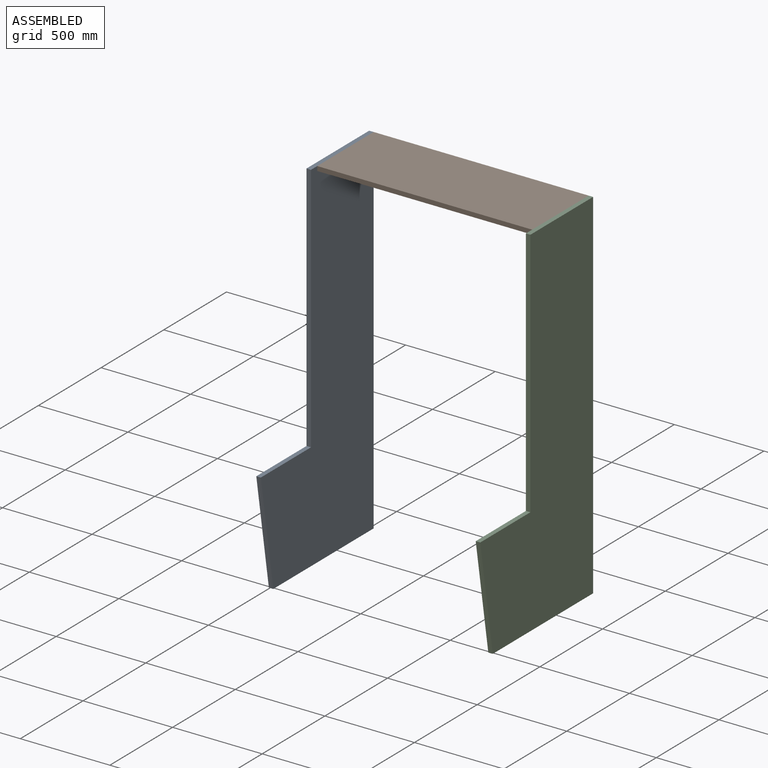
[diagram: assembled view]
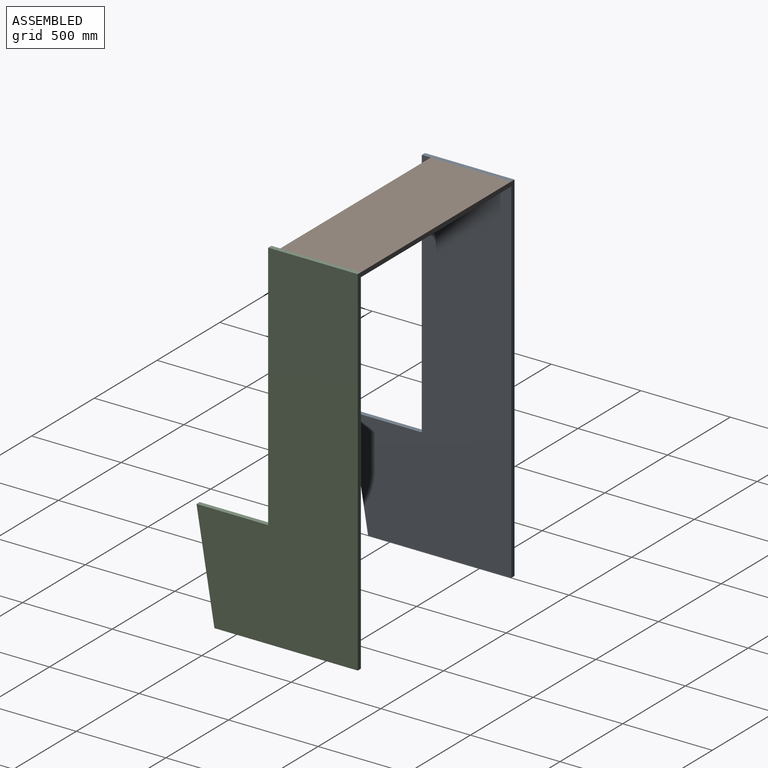
[diagram: assembled view, second angle]
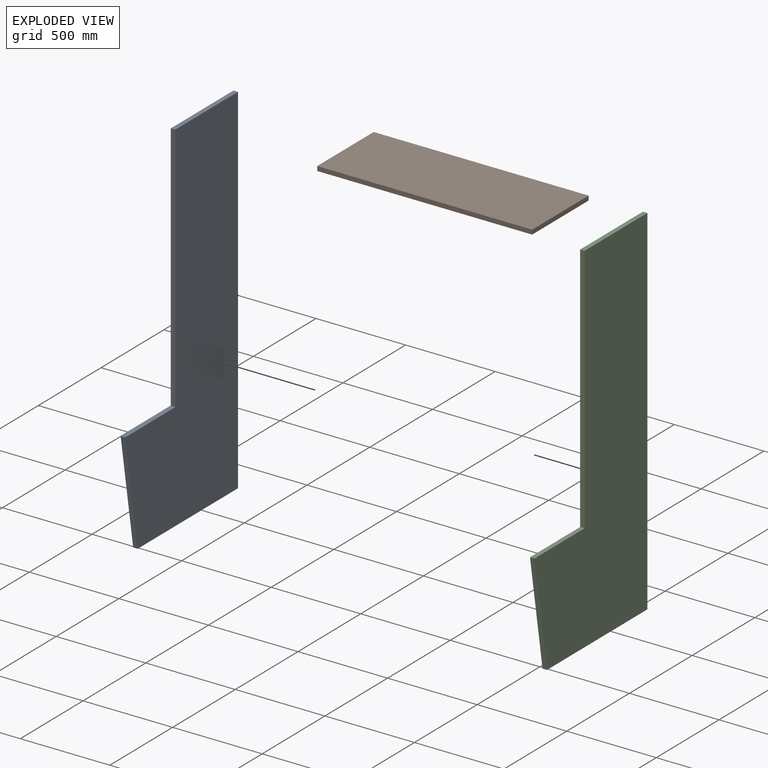
[diagram: exploded view]
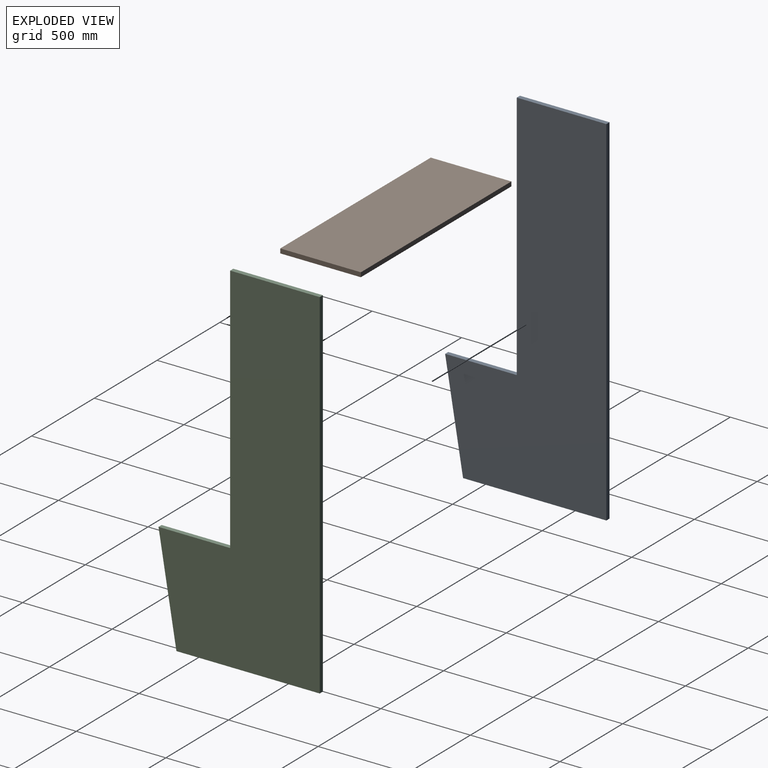
[diagram: exploded view, second angle]
ASSEMBLY  parts=3 mates=2
PART A: 8 faces, bbox 25x900x2000 mm
  f0: plane 2000x25mm, normal (0,1,0), area 50000mm2, adj f1,f5,f6,f7
  f1: plane 500x25mm, normal (0,0,1), area 12500mm2, adj f0,f2,f6,f7
  f2: plane 1400x25mm, normal (0,-1,0), area 35000mm2, adj f1,f3,f6,f7
  f3: plane 400x25mm, normal (0,0,1), area 10000mm2, adj f2,f4,f6,f7
  f4: plane 600x100mm, normal (0,-0.99,-0.16), area 15206.9mm2, adj f3,f5,f6,f7
  f5: plane 800x25mm, normal (0,0,-1), area 20000mm2, adj f0,f4,f6,f7
  f6: plane 2000x900mm, normal (1,0,0), area 1210000mm2, adj f0,f1,f2,f3,f4,f5
  f7: plane 2000x900mm, normal (-1,0,0), area 1210000mm2, adj f0,f1,f2,f3,f4,f5
PART B: 6 faces, bbox 1200x450x25 mm
  f0: plane 1200x25mm, normal (0,1,0), area 30000mm2, adj f1,f3,f4,f5
  f1: plane 450x25mm, normal (-1,0,0), area 11250mm2, adj f0,f2,f4,f5
  f2: plane 1200x25mm, normal (0,-1,0), area 30000mm2, adj f1,f3,f4,f5
  f3: plane 450x25mm, normal (1,0,0), area 11250mm2, adj f0,f2,f4,f5
  f4: plane 1200x450mm, normal (0,0,1), area 540000mm2, adj f0,f1,f2,f3
  f5: plane 1200x450mm, normal (0,0,-1), area 540000mm2, adj f0,f1,f2,f3
PART C: same geometry as A
PLACE A t=(-459.78,724.2,1031.07)mm
PLACE B t=(62.61,724.2,2406.07)mm
PLACE C t=(765.22,724.2,1031.07)mm
MATE fastened B.f3 <-> C.f7  axis (1,0,0) through (765.22,724.2,2431.07)mm
MATE fastened A.f6 <-> B.f1  axis (1,0,0) through (-434.78,724.2,2431.07)mm
